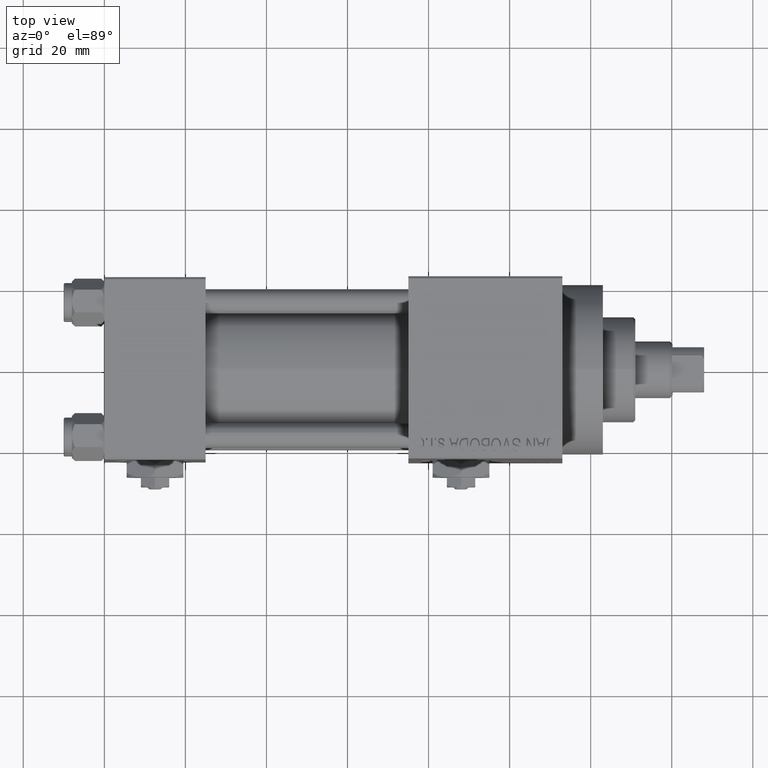
[diagram: clean part render]
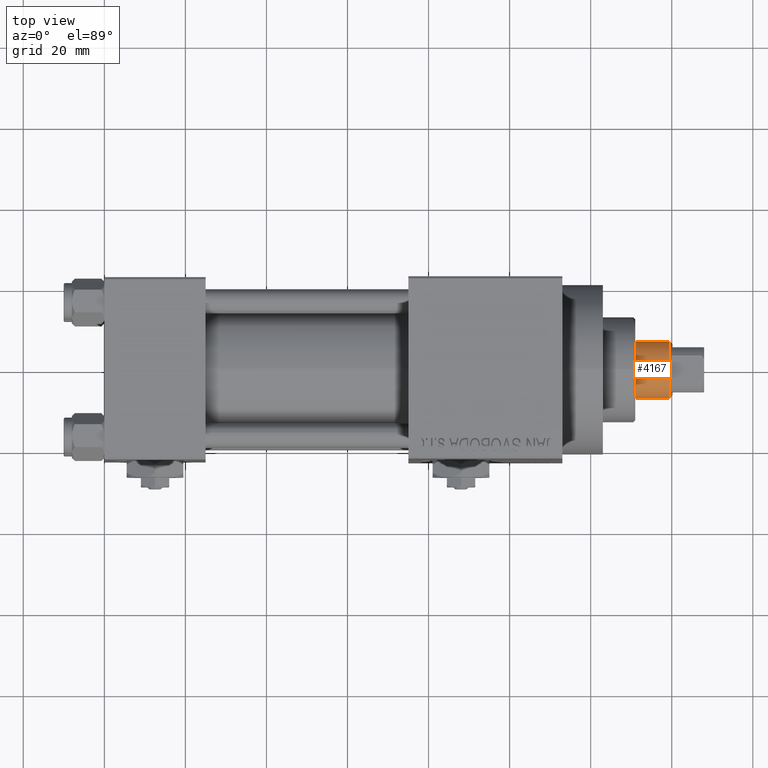
[diagram: same view with one face highlighted and labeled with its STEP entity id]
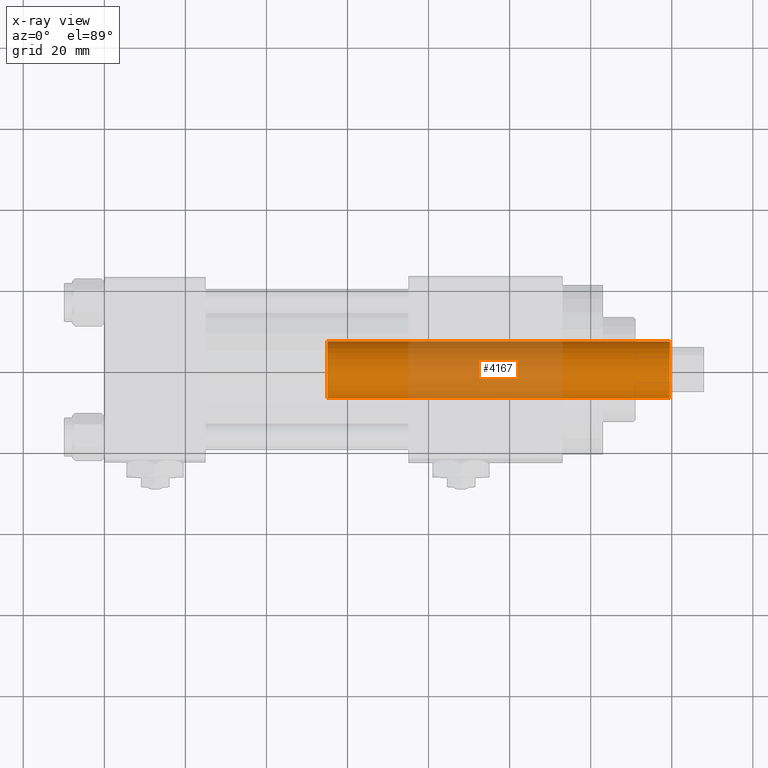
[diagram: x-ray of the same camera — body ghosted, the highlighted face saturated]
A machine part, top view. The second image highlights one B-rep face of the part: STEP entity #4167.
The next image is the same camera in x-ray: the body ghosted, the highlighted face saturated — about 45% of this face is hidden behind the body in this view.
In plain terms, the highlighted cylindrical surface (edge-blend (fillet) strip) has radius 7 mm, axis along (-1, 0, 0).
Its self-contained STEP definition (entity closure, byte-faithful):
#1707 = EDGE_CURVE ( 'NONE', #37479, #6046, #9740, .T. ) ;
#4110 = ORIENTED_EDGE ( 'NONE', *, *, #6636, .T. ) ;
#4167 = ADVANCED_FACE ( 'NONE', ( #17043 ), #8854, .T. ) ;
#4211 = LINE ( 'NONE', #15866, #29238 ) ;
#4529 = ORIENTED_EDGE ( 'NONE', *, *, #30817, .T. ) ;
#6046 = VERTEX_POINT ( 'NONE', #38884 ) ;
#6636 = EDGE_CURVE ( 'NONE', #19124, #26711, #4211, .T. ) ;
#6684 = CARTESIAN_POINT ( 'NONE',  ( 0.000000000000000000, 0.000000000000000000, 114.4999999999999858 ) ) ;
#8854 = CYLINDRICAL_SURFACE ( 'NONE', #27542, 7.000000000000000000 ) ;
#9269 = VECTOR ( 'NONE', #20161, 1000.000000000000000 ) ;
#9740 = LINE ( 'NONE', #16699, #9269 ) ;
#10274 = CARTESIAN_POINT ( 'NONE',  ( -7.000000000000000000, 0.000000000000000000, 30.00000000000000000 ) ) ;
#10770 = CARTESIAN_POINT ( 'NONE',  ( 7.000000000000000000, 8.572527594031473190E-16, 114.4999999999999858 ) ) ;
#12148 = DIRECTION ( 'NONE',  ( -0.000000000000000000, -0.000000000000000000, -1.000000000000000000 ) ) ;
#12917 = CIRCLE ( 'NONE', #27967, 7.000000000000000000 ) ;
#14655 = DIRECTION ( 'NONE',  ( 0.000000000000000000, 0.000000000000000000, 1.000000000000000000 ) ) ;
#15866 = CARTESIAN_POINT ( 'NONE',  ( -7.000000000000000000, 0.000000000000000000, 115.0000000000000000 ) ) ;
#16699 = CARTESIAN_POINT ( 'NONE',  ( 7.000000000000000000, 8.572527594031473190E-16, 115.0000000000000000 ) ) ;
#17043 = FACE_OUTER_BOUND ( 'NONE', #39339, .T. ) ;
#18864 = DIRECTION ( 'NONE',  ( 1.000000000000000000, 0.000000000000000000, 0.000000000000000000 ) ) ;
#19124 = VERTEX_POINT ( 'NONE', #33557 ) ;
#20161 = DIRECTION ( 'NONE',  ( -0.000000000000000000, -0.000000000000000000, -1.000000000000000000 ) ) ;
#25290 = DIRECTION ( 'NONE',  ( 1.000000000000000000, 0.000000000000000000, 0.000000000000000000 ) ) ;
#26711 = VERTEX_POINT ( 'NONE', #10274 ) ;
#27542 = AXIS2_PLACEMENT_3D ( 'NONE', #32173, #28197, #43349 ) ;
#27967 = AXIS2_PLACEMENT_3D ( 'NONE', #44940, #14655, #18864 ) ;
#28197 = DIRECTION ( 'NONE',  ( -0.000000000000000000, -0.000000000000000000, -1.000000000000000000 ) ) ;
#28839 = ORIENTED_EDGE ( 'NONE', *, *, #1707, .F. ) ;
#29238 = VECTOR ( 'NONE', #12148, 1000.000000000000000 ) ;
#29660 = EDGE_CURVE ( 'NONE', #26711, #6046, #12917, .T. ) ;
#30817 = EDGE_CURVE ( 'NONE', #37479, #19124, #36735, .T. ) ;
#32173 = CARTESIAN_POINT ( 'NONE',  ( 0.000000000000000000, 0.000000000000000000, 115.0000000000000000 ) ) ;
#33557 = CARTESIAN_POINT ( 'NONE',  ( -7.000000000000000000, 0.000000000000000000, 114.4999999999999858 ) ) ;
#33905 = ORIENTED_EDGE ( 'NONE', *, *, #29660, .T. ) ;
#36735 = CIRCLE ( 'NONE', #45436, 7.000000000000000000 ) ;
#37479 = VERTEX_POINT ( 'NONE', #10770 ) ;
#38884 = CARTESIAN_POINT ( 'NONE',  ( 7.000000000000000000, 8.572527594031473190E-16, 30.00000000000000000 ) ) ;
#39339 = EDGE_LOOP ( 'NONE', ( #28839, #4529, #4110, #33905 ) ) ;
#43349 = DIRECTION ( 'NONE',  ( -1.000000000000000000, 0.000000000000000000, 0.000000000000000000 ) ) ;
#44659 = DIRECTION ( 'NONE',  ( 0.000000000000000000, 0.000000000000000000, -1.000000000000000000 ) ) ;
#44940 = CARTESIAN_POINT ( 'NONE',  ( 0.000000000000000000, 0.000000000000000000, 30.00000000000000000 ) ) ;
#45436 = AXIS2_PLACEMENT_3D ( 'NONE', #6684, #44659, #25290 ) ;